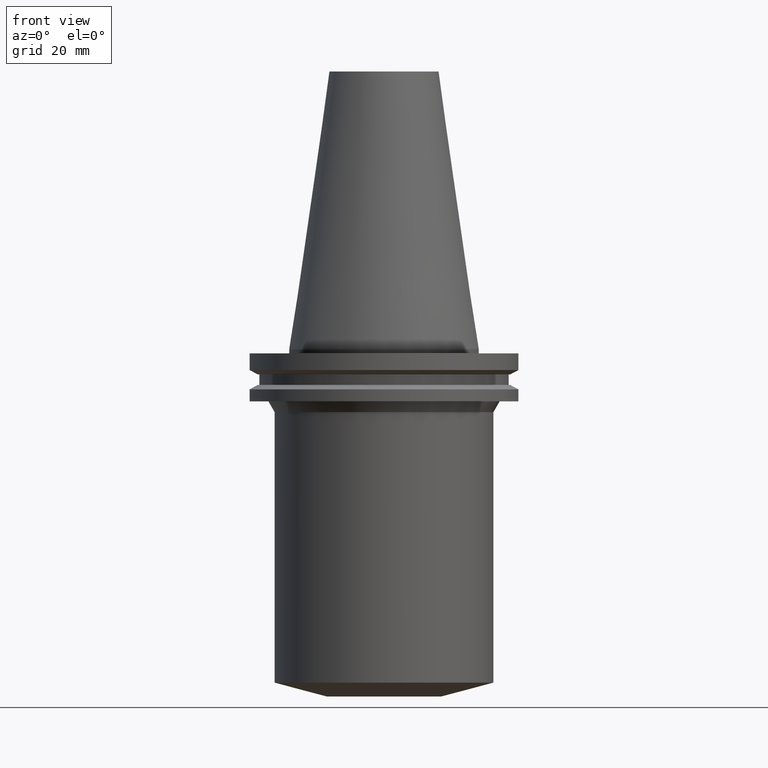
[diagram: clean part render]
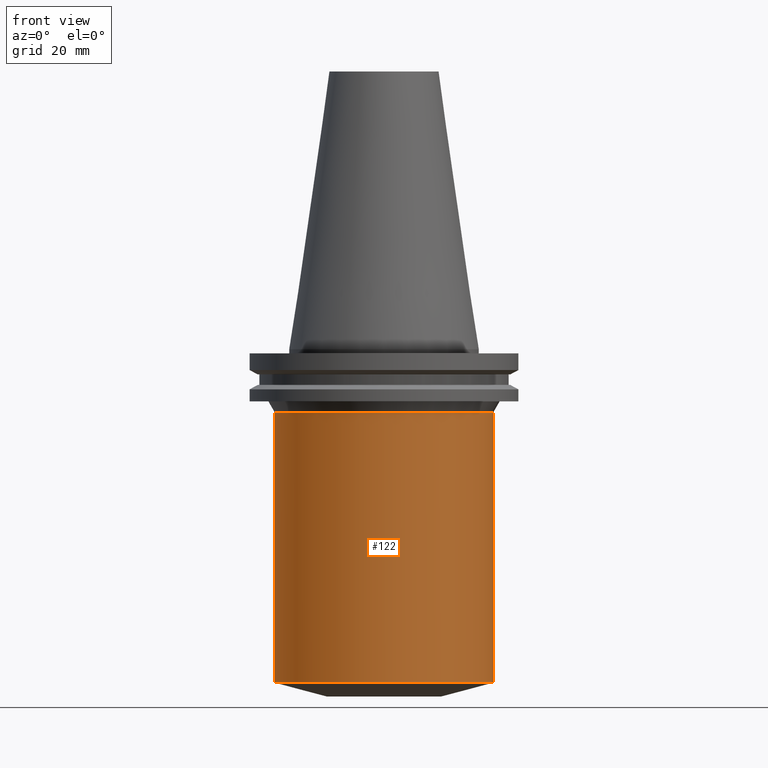
[diagram: same view with one face highlighted and labeled with its STEP entity id]
A machine part, front view. The second image highlights one B-rep face of the part: STEP entity #122.
In plain terms, the highlighted cylindrical surface (bore or boss wall) has radius 40 mm, axis along (0, 0, -1).
Its self-contained STEP definition (entity closure, byte-faithful):
#93=EDGE_CURVE('Unnamed[1]',#210,#210,#211,.T.);
#122=ADVANCED_FACE('Unnamed[1]',(#256,#257),#258,.T.);
#124=EDGE_CURVE('Unnamed[1]',#260,#260,#261,.T.);
#210=VERTEX_POINT('',#358);
#211=CIRCLE('',#359,39.9999999999974);
#256=FACE_BOUND('',#415,.T.);
#257=FACE_BOUND('',#416,.T.);
#258=CYLINDRICAL_SURFACE('',#417,39.9999999999972);
#260=VERTEX_POINT('',#420);
#261=CIRCLE('',#421,39.9999999999969);
#358=CARTESIAN_POINT('',(1.40834381901937E-015,39.9999999999974,-22.9999999999986));
#359=AXIS2_PLACEMENT_3D('',#506,#507,#508);
#415=EDGE_LOOP('',(#558));
#416=EDGE_LOOP('',(#559));
#417=AXIS2_PLACEMENT_3D('',#560,#561,#562);
#420=CARTESIAN_POINT('',(7.46477120978171E-015,39.9999999999969,-121.908965343787));
#421=AXIS2_PLACEMENT_3D('',#563,#564,#565);
#506=CARTESIAN_POINT('',(1.40834381901937E-015,2.81668763803874E-015,-22.9999999999986));
#507=DIRECTION('',(6.12323399573677E-017,1.22464679914735E-016,-1.0));
#508=DIRECTION('',(-1.23259516440783E-032,1.0,1.22464679914735E-016));
#558=ORIENTED_EDGE('',*,*,#124,.F.);
#559=ORIENTED_EDGE('',*,*,#93,.T.);
#560=CARTESIAN_POINT('',(4.43655751440054E-015,8.87311502880108E-015,-72.4544826718927));
#561=DIRECTION('',(6.12323399573677E-017,1.22464679914735E-016,-1.0));
#562=DIRECTION('',(-1.23259516440783E-032,1.0,1.22464679914735E-016));
#563=CARTESIAN_POINT('',(7.46477120978171E-015,1.49295424195634E-014,-121.908965343787));
#564=DIRECTION('',(6.12323399573677E-017,1.22464679914735E-016,-1.0));
#565=DIRECTION('',(-1.23259516440783E-032,1.0,1.22464679914735E-016));